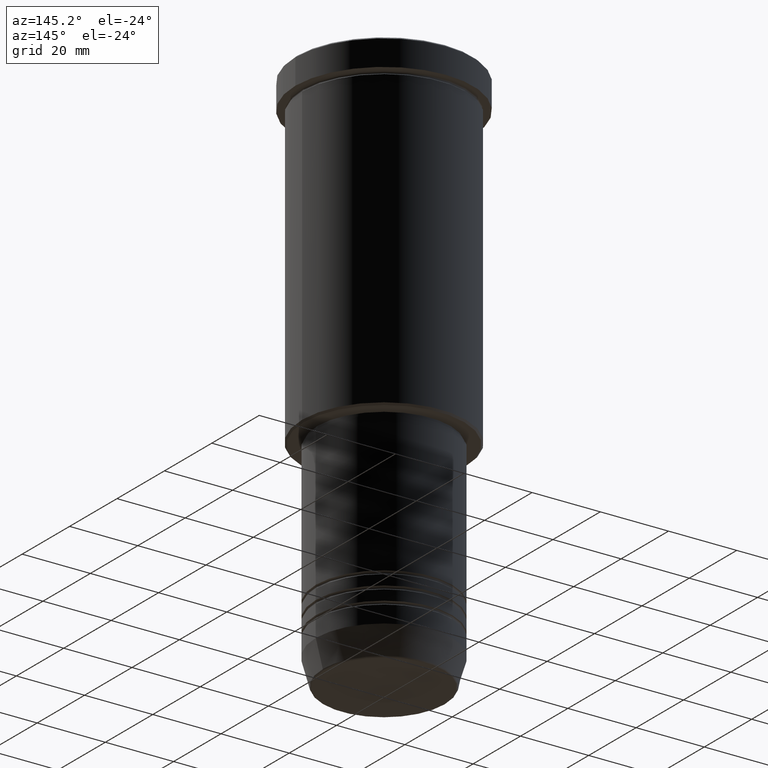
[diagram: clean part render]
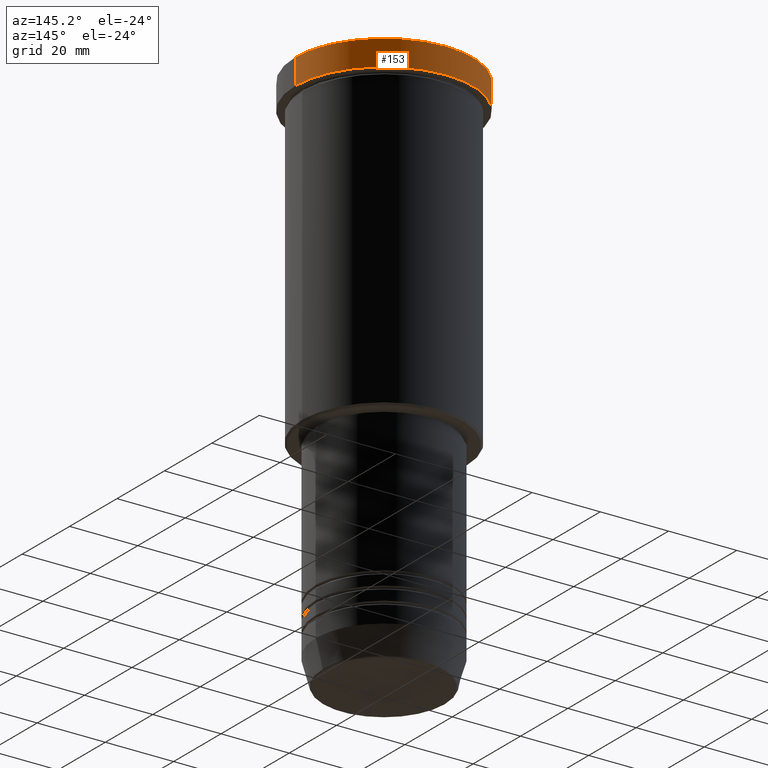
[diagram: same view with one face highlighted and labeled with its STEP entity id]
A machine part, auxiliary view. The second image highlights one B-rep face of the part: STEP entity #153.
In plain terms, the highlighted cylindrical surface (partial cylindrical patch) has radius 26 mm, axis along (-0, -0, 1).
Its self-contained STEP definition (entity closure, byte-faithful):
#8 = EDGE_LOOP ( 'NONE', ( #26, #243, #1134, #462 ) ) ;
#9 = CARTESIAN_POINT ( 'NONE',  ( 26.00000000000000000, 0.000000000000000000, -7.999999999999992895 ) ) ;
#26 = ORIENTED_EDGE ( 'NONE', *, *, #965, .T. ) ;
#38 = DIRECTION ( 'NONE',  ( -0.000000000000000000, -0.000000000000000000, 1.000000000000000000 ) ) ;
#45 = CARTESIAN_POINT ( 'NONE',  ( 0.000000000000000000, 0.000000000000000000, 0.000000000000000000 ) ) ;
#47 = DIRECTION ( 'NONE',  ( 1.000000000000000000, 0.000000000000000000, 0.000000000000000000 ) ) ;
#147 = EDGE_CURVE ( 'NONE', #942, #969, #298, .T. ) ;
#149 = CARTESIAN_POINT ( 'NONE',  ( -26.00000000000000000, 3.184081677783118191E-15, -0.4999999999999970024 ) ) ;
#153 = ADVANCED_FACE ( 'NONE', ( #670 ), #583, .T. ) ;
#167 = DIRECTION ( 'NONE',  ( -0.000000000000000000, -0.000000000000000000, 1.000000000000000000 ) ) ;
#214 = DIRECTION ( 'NONE',  ( 1.000000000000000000, 0.000000000000000000, 0.000000000000000000 ) ) ;
#243 = ORIENTED_EDGE ( 'NONE', *, *, #147, .T. ) ;
#266 = DIRECTION ( 'NONE',  ( 1.000000000000000000, 0.000000000000000000, 0.000000000000000000 ) ) ;
#298 = LINE ( 'NONE', #675, #781 ) ;
#316 = DIRECTION ( 'NONE',  ( -0.000000000000000000, -0.000000000000000000, 1.000000000000000000 ) ) ;
#341 = CARTESIAN_POINT ( 'NONE',  ( 26.00000000000000000, 0.000000000000000000, 0.000000000000000000 ) ) ;
#376 = EDGE_CURVE ( 'NONE', #731, #540, #613, .T. ) ;
#391 = DIRECTION ( 'NONE',  ( -0.000000000000000000, -0.000000000000000000, 1.000000000000000000 ) ) ;
#462 = ORIENTED_EDGE ( 'NONE', *, *, #376, .F. ) ;
#469 = CIRCLE ( 'NONE', #589, 26.00000000000000000 ) ;
#540 = VERTEX_POINT ( 'NONE', #1106 ) ;
#579 = CARTESIAN_POINT ( 'NONE',  ( -26.00000000000000000, 3.184081677783118191E-15, -7.999999999999992895 ) ) ;
#583 = CYLINDRICAL_SURFACE ( 'NONE', #1166, 26.00000000000000000 ) ;
#589 = AXIS2_PLACEMENT_3D ( 'NONE', #822, #904, #266 ) ;
#613 = LINE ( 'NONE', #341, #1125 ) ;
#670 = FACE_OUTER_BOUND ( 'NONE', #8, .T. ) ;
#675 = CARTESIAN_POINT ( 'NONE',  ( -26.00000000000000000, 3.184081677783118191E-15, 0.000000000000000000 ) ) ;
#716 = CARTESIAN_POINT ( 'NONE',  ( 0.000000000000000000, 0.000000000000000000, -7.999999999999992895 ) ) ;
#731 = VERTEX_POINT ( 'NONE', #9 ) ;
#781 = VECTOR ( 'NONE', #391, 1000.000000000000000 ) ;
#786 = EDGE_CURVE ( 'NONE', #969, #540, #469, .T. ) ;
#822 = CARTESIAN_POINT ( 'NONE',  ( 0.000000000000000000, 0.000000000000000000, -0.4999999999999970024 ) ) ;
#847 = AXIS2_PLACEMENT_3D ( 'NONE', #716, #316, #47 ) ;
#904 = DIRECTION ( 'NONE',  ( 0.000000000000000000, 0.000000000000000000, -1.000000000000000000 ) ) ;
#942 = VERTEX_POINT ( 'NONE', #579 ) ;
#965 = EDGE_CURVE ( 'NONE', #731, #942, #1029, .T. ) ;
#969 = VERTEX_POINT ( 'NONE', #149 ) ;
#1029 = CIRCLE ( 'NONE', #847, 26.00000000000000000 ) ;
#1106 = CARTESIAN_POINT ( 'NONE',  ( 26.00000000000000000, 0.000000000000000000, -0.4999999999999970024 ) ) ;
#1125 = VECTOR ( 'NONE', #167, 1000.000000000000000 ) ;
#1134 = ORIENTED_EDGE ( 'NONE', *, *, #786, .T. ) ;
#1166 = AXIS2_PLACEMENT_3D ( 'NONE', #45, #38, #214 ) ;